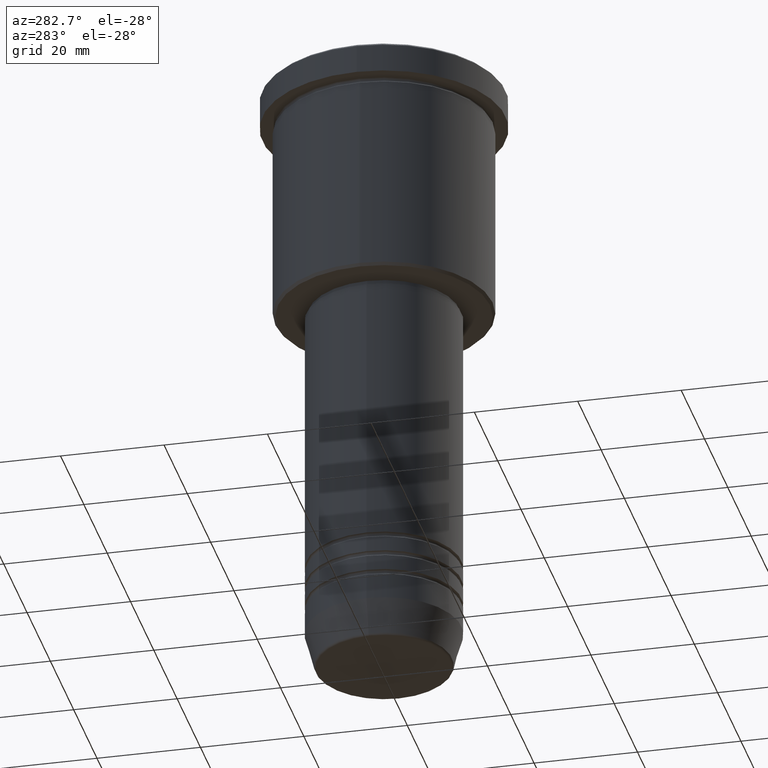
[diagram: clean part render]
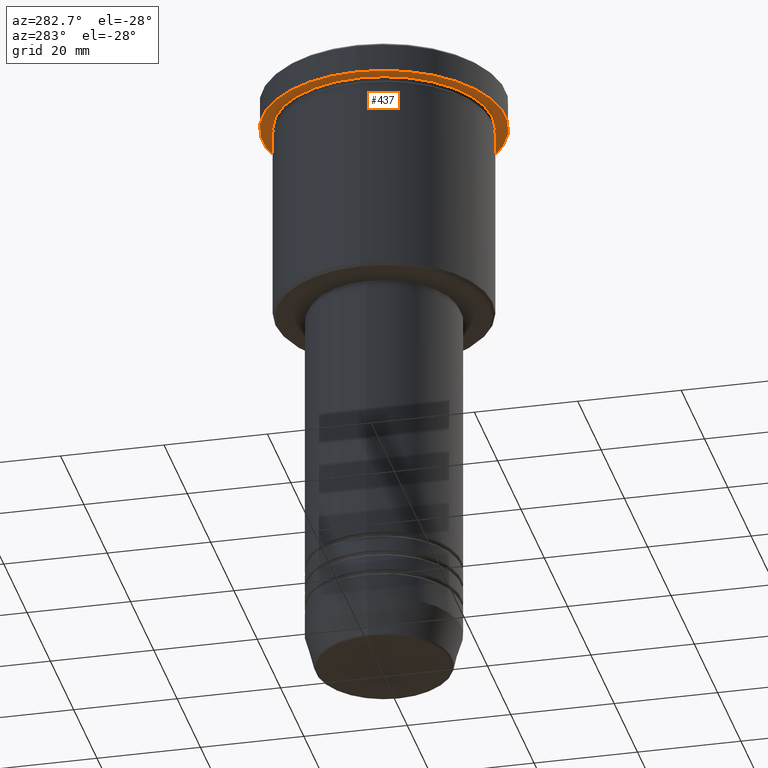
[diagram: same view with one face highlighted and labeled with its STEP entity id]
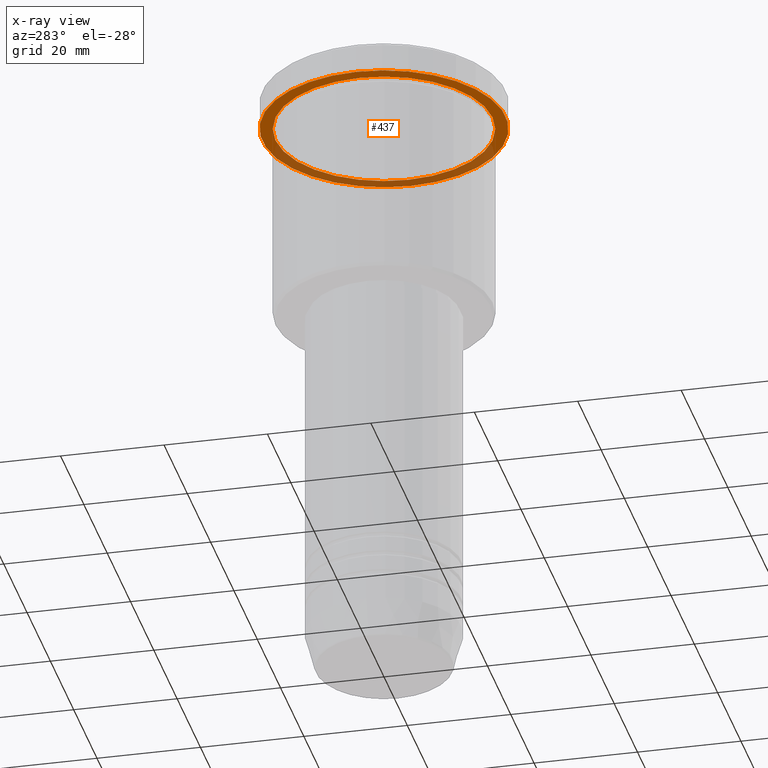
[diagram: x-ray of the same camera — body ghosted, the highlighted face saturated]
A machine part, auxiliary view. The second image highlights one B-rep face of the part: STEP entity #437.
The next image is the same camera in x-ray: the body ghosted, the highlighted face saturated — about 38% of this face is hidden behind the body in this view.
In plain terms, the highlighted planar face has unit normal (0, 0, -1).
Its self-contained STEP definition (entity closure, byte-faithful):
#48 = EDGE_LOOP ( 'NONE', ( #653, #1083 ) ) ;
#87 = AXIS2_PLACEMENT_3D ( 'NONE', #682, #291, #188 ) ;
#112 = DIRECTION ( 'NONE',  ( -1.000000000000000000, 0.000000000000000000, 0.000000000000000000 ) ) ;
#125 = FACE_BOUND ( 'NONE', #897, .T. ) ;
#132 = DIRECTION ( 'NONE',  ( -0.000000000000000000, -0.000000000000000000, 1.000000000000000000 ) ) ;
#188 = DIRECTION ( 'NONE',  ( 1.000000000000000000, 0.000000000000000000, 0.000000000000000000 ) ) ;
#195 = DIRECTION ( 'NONE',  ( -0.000000000000000000, -0.000000000000000000, 1.000000000000000000 ) ) ;
#256 = EDGE_CURVE ( 'NONE', #1073, #505, #634, .T. ) ;
#272 = EDGE_CURVE ( 'NONE', #1030, #519, #1176, .T. ) ;
#291 = DIRECTION ( 'NONE',  ( -0.000000000000000000, -0.000000000000000000, 1.000000000000000000 ) ) ;
#339 = CIRCLE ( 'NONE', #1133, 23.50000000000000000 ) ;
#351 = CARTESIAN_POINT ( 'NONE',  ( 23.50000000000000000, 0.000000000000000000, -5.999999999999993783 ) ) ;
#437 = ADVANCED_FACE ( 'NONE', ( #125, #507 ), #503, .T. ) ;
#453 = DIRECTION ( 'NONE',  ( -1.000000000000000000, 0.000000000000000000, 0.000000000000000000 ) ) ;
#503 = PLANE ( 'NONE',  #905 ) ;
#505 = VERTEX_POINT ( 'NONE', #351 ) ;
#507 = FACE_OUTER_BOUND ( 'NONE', #48, .T. ) ;
#509 = ORIENTED_EDGE ( 'NONE', *, *, #805, .T. ) ;
#519 = VERTEX_POINT ( 'NONE', #802 ) ;
#524 = DIRECTION ( 'NONE',  ( 0.000000000000000000, 0.000000000000000000, -1.000000000000000000 ) ) ;
#542 = AXIS2_PLACEMENT_3D ( 'NONE', #1169, #735, #453 ) ;
#634 = CIRCLE ( 'NONE', #87, 23.50000000000000000 ) ;
#653 = ORIENTED_EDGE ( 'NONE', *, *, #913, .F. ) ;
#682 = CARTESIAN_POINT ( 'NONE',  ( 0.000000000000000000, 0.000000000000000000, -5.999999999999993783 ) ) ;
#709 = CARTESIAN_POINT ( 'NONE',  ( 0.000000000000000000, 0.000000000000000000, -5.999999999999993783 ) ) ;
#735 = DIRECTION ( 'NONE',  ( -0.000000000000000000, -0.000000000000000000, 1.000000000000000000 ) ) ;
#742 = AXIS2_PLACEMENT_3D ( 'NONE', #845, #195, #112 ) ;
#770 = CARTESIAN_POINT ( 'NONE',  ( 0.000000000000000000, 23.50000000000000000, -5.999999999999993783 ) ) ;
#802 = CARTESIAN_POINT ( 'NONE',  ( 21.00000000000000000, 2.571758278209441661E-15, -5.999999999999992895 ) ) ;
#805 = EDGE_CURVE ( 'NONE', #519, #1030, #981, .T. ) ;
#811 = ORIENTED_EDGE ( 'NONE', *, *, #272, .T. ) ;
#845 = CARTESIAN_POINT ( 'NONE',  ( 0.000000000000000000, 0.000000000000000000, -5.999999999999993783 ) ) ;
#877 = DIRECTION ( 'NONE',  ( -1.000000000000000000, 0.000000000000000000, -0.000000000000000000 ) ) ;
#897 = EDGE_LOOP ( 'NONE', ( #811, #509 ) ) ;
#901 = CARTESIAN_POINT ( 'NONE',  ( -23.50000000000000000, 2.877919977996280320E-15, -5.999999999999993783 ) ) ;
#905 = AXIS2_PLACEMENT_3D ( 'NONE', #770, #524, #877 ) ;
#913 = EDGE_CURVE ( 'NONE', #505, #1073, #339, .T. ) ;
#952 = CARTESIAN_POINT ( 'NONE',  ( -21.00000000000000000, 0.000000000000000000, -5.999999999999992895 ) ) ;
#981 = CIRCLE ( 'NONE', #542, 21.00000000000000000 ) ;
#1030 = VERTEX_POINT ( 'NONE', #952 ) ;
#1073 = VERTEX_POINT ( 'NONE', #901 ) ;
#1083 = ORIENTED_EDGE ( 'NONE', *, *, #256, .F. ) ;
#1133 = AXIS2_PLACEMENT_3D ( 'NONE', #709, #132, #1137 ) ;
#1137 = DIRECTION ( 'NONE',  ( 1.000000000000000000, 0.000000000000000000, 0.000000000000000000 ) ) ;
#1169 = CARTESIAN_POINT ( 'NONE',  ( 0.000000000000000000, 0.000000000000000000, -5.999999999999993783 ) ) ;
#1176 = CIRCLE ( 'NONE', #742, 21.00000000000000000 ) ;